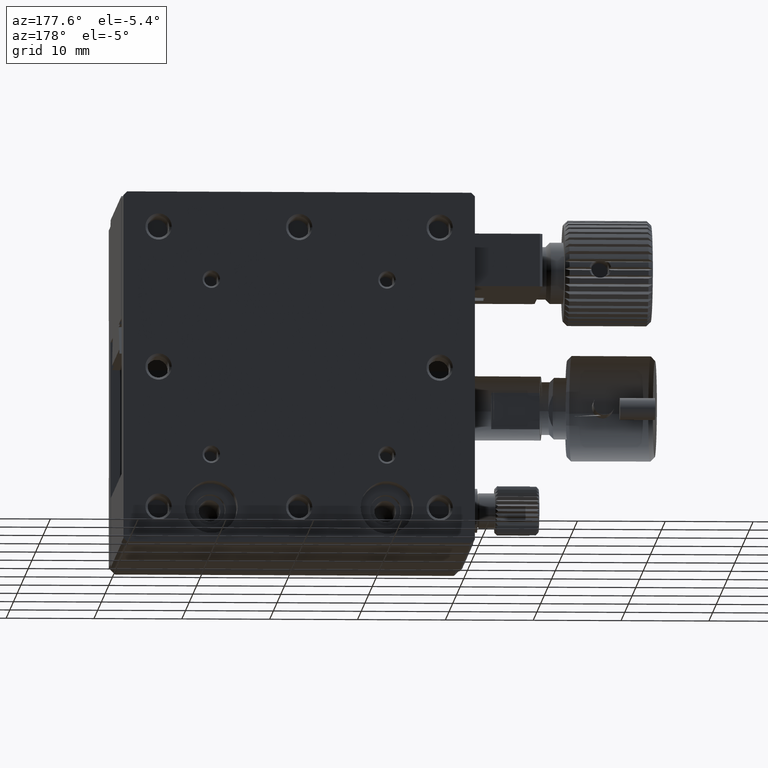
[diagram: clean part render]
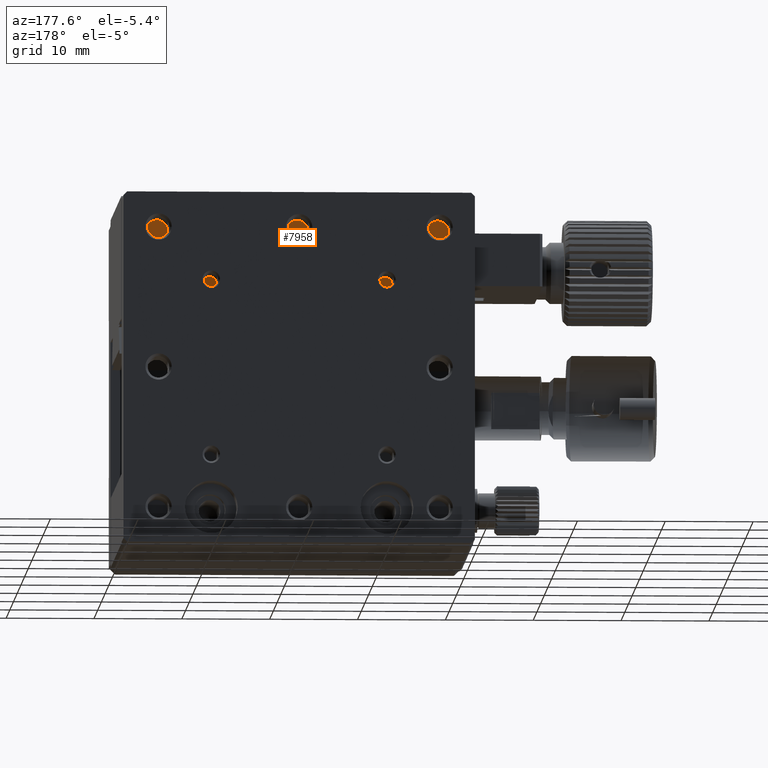
[diagram: same view with one face highlighted and labeled with its STEP entity id]
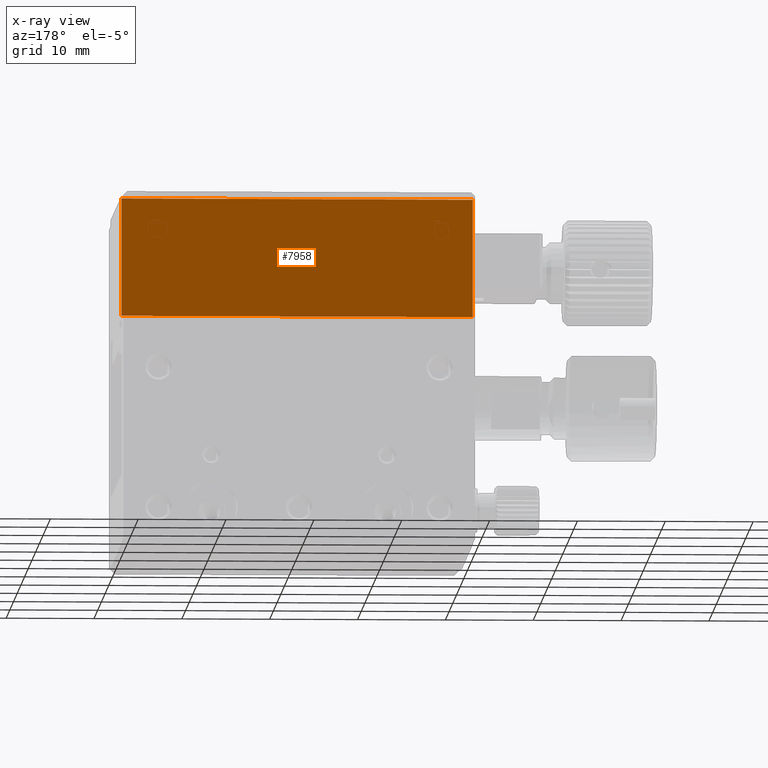
[diagram: x-ray of the same camera — body ghosted, the highlighted face saturated]
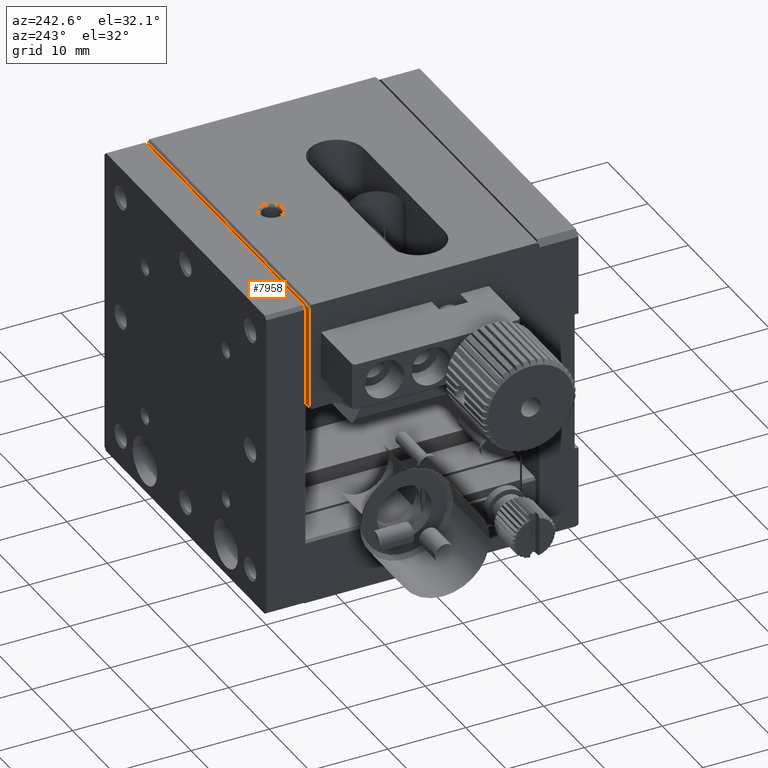
[diagram: same view with one face highlighted and labeled with its STEP entity id]
A machine part, auxiliary view. The second image highlights one B-rep face of the part: STEP entity #7958.
The next image is the same camera in x-ray: the body ghosted, the highlighted face saturated — about 0% of this face is hidden behind the body in this view.
A second angle (auxiliary view) of the same face is appended — the face is thin or edge-on in the first view.
In plain terms, the highlighted planar face has unit normal (0, -1, -0).
Its self-contained STEP definition (entity closure, byte-faithful):
#507 = VECTOR ( 'NONE', #17898, 1000.000000000000000 ) ;
#574 = VERTEX_POINT ( 'NONE', #648 ) ;
#609 = EDGE_CURVE ( 'NONE', #574, #19285, #15473, .T. ) ;
#648 = CARTESIAN_POINT ( 'NONE',  ( 40.00000000000000000, 34.49999999999999289, -13.69999999999999396 ) ) ;
#1851 = VECTOR ( 'NONE', #10166, 1000.000000000000000 ) ;
#3043 = DIRECTION ( 'NONE',  ( -0.000000000000000000, -0.000000000000000000, 1.000000000000000000 ) ) ;
#6351 = ORIENTED_EDGE ( 'NONE', *, *, #609, .F. ) ;
#6723 = FACE_OUTER_BOUND ( 'NONE', #8428, .T. ) ;
#7117 = AXIS2_PLACEMENT_3D ( 'NONE', #11043, #17024, #12691 ) ;
#7759 = CARTESIAN_POINT ( 'NONE',  ( 0.000000000000000000, 34.50000000000000000, 0.000000000000000000 ) ) ;
#7958 = ADVANCED_FACE ( 'NONE', ( #6723 ), #14072, .F. ) ;
#8428 = EDGE_LOOP ( 'NONE', ( #17882, #6351, #16060, #14557 ) ) ;
#10060 = CARTESIAN_POINT ( 'NONE',  ( 40.00000000000000000, 34.50000000000000000, -0.3000000000000102029 ) ) ;
#10166 = DIRECTION ( 'NONE',  ( 1.000000000000000000, -0.000000000000000000, 0.000000000000000000 ) ) ;
#10999 = VECTOR ( 'NONE', #15660, 1000.000000000000000 ) ;
#11043 = CARTESIAN_POINT ( 'NONE',  ( 40.00000000000000000, 34.50000000000000000, -13.70000000000000107 ) ) ;
#11813 = LINE ( 'NONE', #13373, #507 ) ;
#12433 = CARTESIAN_POINT ( 'NONE',  ( 40.00000000000000000, 34.50000000000000000, 0.000000000000000000 ) ) ;
#12691 = DIRECTION ( 'NONE',  ( -1.000000000000000000, 0.000000000000000000, -0.000000000000000000 ) ) ;
#13285 = EDGE_CURVE ( 'NONE', #19240, #19285, #11813, .T. ) ;
#13373 = CARTESIAN_POINT ( 'NONE',  ( 40.00000000000000000, 34.50000000000000000, -0.3000000000000099809 ) ) ;
#13533 = LINE ( 'NONE', #7759, #15561 ) ;
#14072 = PLANE ( 'NONE',  #7117 ) ;
#14088 = EDGE_CURVE ( 'NONE', #16748, #19240, #13533, .T. ) ;
#14557 = ORIENTED_EDGE ( 'NONE', *, *, #14088, .T. ) ;
#14882 = CARTESIAN_POINT ( 'NONE',  ( 40.00000000000000000, 34.50000000000000000, -13.70000000000000107 ) ) ;
#15473 = LINE ( 'NONE', #12433, #10999 ) ;
#15561 = VECTOR ( 'NONE', #3043, 1000.000000000000000 ) ;
#15660 = DIRECTION ( 'NONE',  ( -0.000000000000000000, -0.000000000000000000, 1.000000000000000000 ) ) ;
#16060 = ORIENTED_EDGE ( 'NONE', *, *, #17318, .F. ) ;
#16748 = VERTEX_POINT ( 'NONE', #17545 ) ;
#17024 = DIRECTION ( 'NONE',  ( 0.000000000000000000, -1.000000000000000000, -0.000000000000000000 ) ) ;
#17042 = CARTESIAN_POINT ( 'NONE',  ( 0.000000000000000000, 34.50000000000000000, -0.3000000000000102029 ) ) ;
#17318 = EDGE_CURVE ( 'NONE', #16748, #574, #17621, .T. ) ;
#17545 = CARTESIAN_POINT ( 'NONE',  ( 0.000000000000000000, 34.49999999999999289, -13.69999999999999396 ) ) ;
#17621 = LINE ( 'NONE', #14882, #1851 ) ;
#17882 = ORIENTED_EDGE ( 'NONE', *, *, #13285, .T. ) ;
#17898 = DIRECTION ( 'NONE',  ( 1.000000000000000000, 0.000000000000000000, 0.000000000000000000 ) ) ;
#19240 = VERTEX_POINT ( 'NONE', #17042 ) ;
#19285 = VERTEX_POINT ( 'NONE', #10060 ) ;